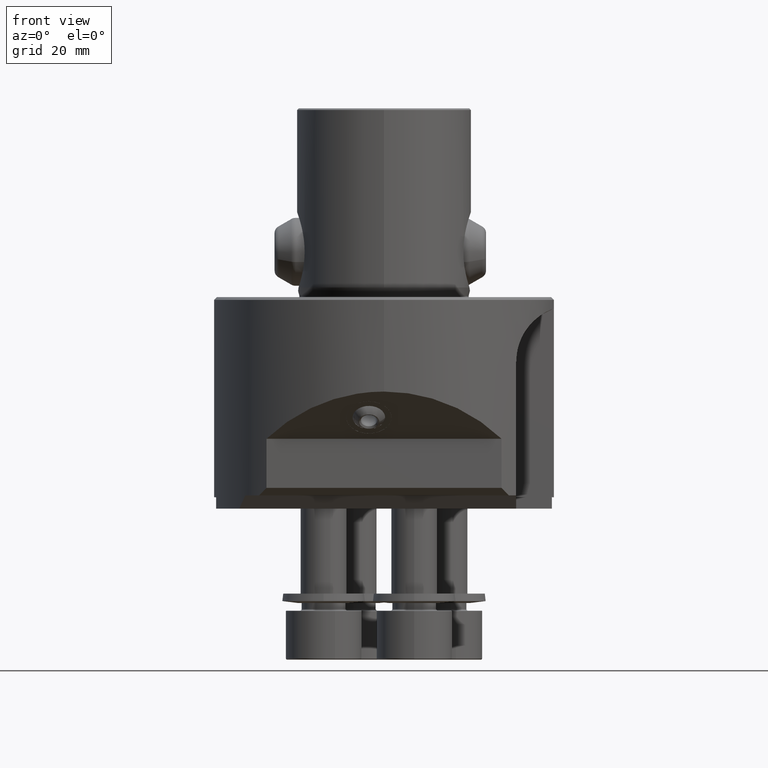
[diagram: clean part render]
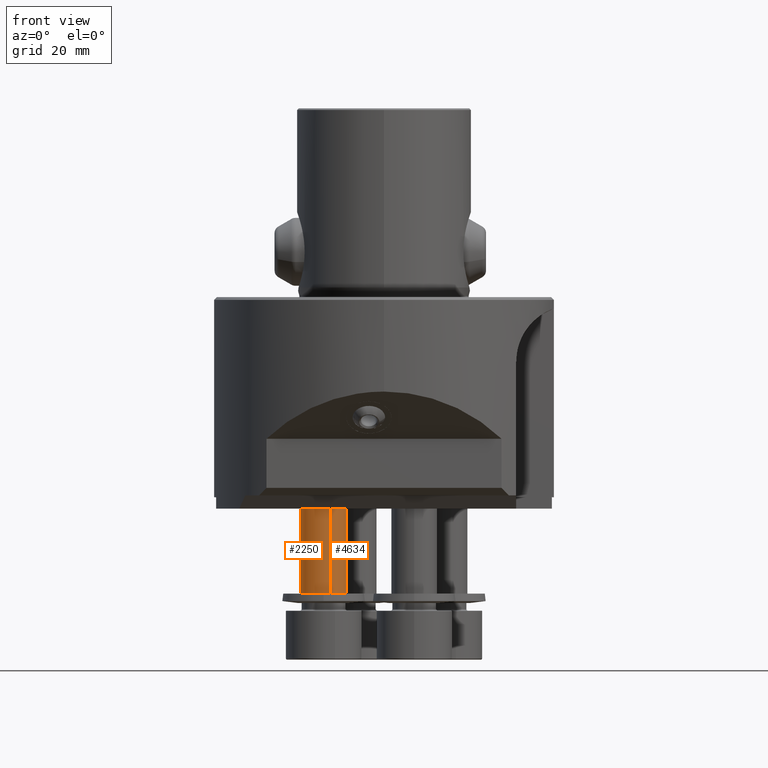
[diagram: same view with one multi-face feature highlighted, each face labeled with its STEP entity id]
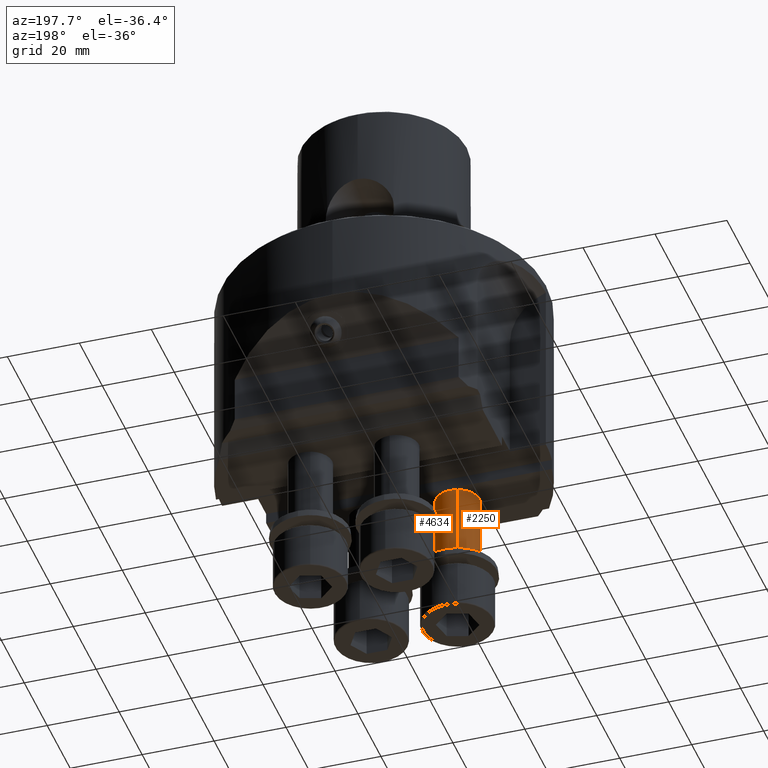
[diagram: same view with one multi-face feature highlighted, each face labeled with its STEP entity id]
A machine part, front view. The highlighted faces form ONE feature: a constant-radius fillet chain: 2 tangent blend faces with common blend radius 6.075 mm. The faces share edges in the B-rep.
A second angle (auxiliary view) of the same feature is appended — it is thin or edge-on in the first view.
Their STEP definitions:
[1] entity #4634 (Cylinder):
#2238=EDGE_CURVE('NONE',#4838,#3750,#6344,.T.);
#2286=VERTEX_POINT('NONE',#6396);
#2556=EDGE_CURVE('NONE',#5836,#4838,#6700,.T.);
#3750=VERTEX_POINT('NONE',#8047);
#4634=ADVANCED_FACE('NONE',(#9048),#9049,.T.);
#4838=VERTEX_POINT('NONE',#9280);
#5340=EDGE_CURVE('NONE',#3750,#2286,#9839,.T.);
#5474=EDGE_CURVE('NONE',#5836,#2286,#9993,.T.);
#5836=VERTEX_POINT('NONE',#10397);
#6344=LINE('',#11039,#11040);
#6396=CARTESIAN_POINT('',(-17.8342657959462,-8.20853265658691,-80.9));
#6700=CIRCLE('',#11525,6.075);
#8047=CARTESIAN_POINT('',(-14.1657342040536,-19.7914673434133,-80.9));
#9048=FACE_OUTER_BOUND('',#15001,.T.);
#9049=CYLINDRICAL_SURFACE('',#15002,6.075);
#9280=CARTESIAN_POINT('',(-14.1657342040536,-19.7914673434133,-55.1));
#9839=CIRCLE('',#16393,6.075);
#9993=LINE('',#16690,#16691);
#10397=CARTESIAN_POINT('',(-17.8342657959462,-8.20853265658691,-55.1));
#11039=CARTESIAN_POINT('',(-14.1657342040536,-19.7914673434133,-88.5539891070486));
#11040=VECTOR('',#17942,1000.0);
#11525=AXIS2_PLACEMENT_3D('',#18364,#18365,#18366);
#15001=EDGE_LOOP('',(#21422,#21423,#21424,#21425));
#15002=AXIS2_PLACEMENT_3D('',#21426,#21427,#21428);
#16393=AXIS2_PLACEMENT_3D('',#22345,#22346,#22347);
#16690=CARTESIAN_POINT('',(-17.8342657959462,-8.20853265658691,-88.5539891070486));
#16691=VECTOR('',#22557,1000.0);
#17942=DIRECTION('',(0.0,0.0,-1.0));
#18364=CARTESIAN_POINT('',(-15.9999999999999,-14.0000000000001,-55.1));
#18365=DIRECTION('',(0.0,0.0,-1.0));
#18366=DIRECTION('',(0.301936756534368,-0.95332795776349,0.0));
#21422=ORIENTED_EDGE('',*,*,#5474,.F.);
#21423=ORIENTED_EDGE('',*,*,#2556,.T.);
#21424=ORIENTED_EDGE('',*,*,#2238,.T.);
#21425=ORIENTED_EDGE('',*,*,#5340,.T.);
#21426=CARTESIAN_POINT('',(-15.9999999999999,-14.0000000000001,-88.5539891070486));
#21427=DIRECTION('',(-0.0,-0.0,-1.0));
#21428=DIRECTION('',(0.301936756534368,-0.95332795776349,-0.0));
#22345=CARTESIAN_POINT('',(-15.9999999999999,-14.0000000000001,-80.9));
#22346=DIRECTION('',(0.0,0.0,1.0));
#22347=DIRECTION('',(-0.301936756534368,0.95332795776349,0.0));
#22557=DIRECTION('',(0.0,0.0,-1.0));
[2] entity #2250 (Cylinder):
#2238=EDGE_CURVE('NONE',#4838,#3750,#6344,.T.);
#2250=ADVANCED_FACE('NONE',(#6356),#6357,.T.);
#2286=VERTEX_POINT('NONE',#6396);
#3750=VERTEX_POINT('NONE',#8047);
#4424=EDGE_CURVE('NONE',#2286,#3750,#8813,.T.);
#4838=VERTEX_POINT('NONE',#9280);
#4892=EDGE_CURVE('NONE',#4838,#5836,#9341,.T.);
#5474=EDGE_CURVE('NONE',#5836,#2286,#9993,.T.);
#5836=VERTEX_POINT('NONE',#10397);
#6344=LINE('',#11039,#11040);
#6356=FACE_OUTER_BOUND('',#11056,.T.);
#6357=CYLINDRICAL_SURFACE('',#11057,6.075);
#6396=CARTESIAN_POINT('',(-17.8342657959462,-8.20853265658691,-80.9));
#8047=CARTESIAN_POINT('',(-14.1657342040536,-19.7914673434133,-80.9));
#8813=CIRCLE('',#14629,6.075);
#9280=CARTESIAN_POINT('',(-14.1657342040536,-19.7914673434133,-55.1));
#9341=CIRCLE('',#15401,6.075);
#9993=LINE('',#16690,#16691);
#10397=CARTESIAN_POINT('',(-17.8342657959462,-8.20853265658691,-55.1));
#11039=CARTESIAN_POINT('',(-14.1657342040536,-19.7914673434133,-88.5539891070486));
#11040=VECTOR('',#17942,1000.0);
#11056=EDGE_LOOP('',(#17956,#17957,#17958,#17959));
#11057=AXIS2_PLACEMENT_3D('',#17960,#17961,#17962);
#14629=AXIS2_PLACEMENT_3D('',#21112,#21113,#21114);
#15401=AXIS2_PLACEMENT_3D('',#21781,#21782,#21783);
#16690=CARTESIAN_POINT('',(-17.8342657959462,-8.20853265658691,-88.5539891070486));
#16691=VECTOR('',#22557,1000.0);
#17942=DIRECTION('',(0.0,0.0,-1.0));
#17956=ORIENTED_EDGE('',*,*,#4892,.T.);
#17957=ORIENTED_EDGE('',*,*,#5474,.T.);
#17958=ORIENTED_EDGE('',*,*,#4424,.T.);
#17959=ORIENTED_EDGE('',*,*,#2238,.F.);
#17960=CARTESIAN_POINT('',(-15.9999999999999,-14.0000000000001,-88.5539891070486));
#17961=DIRECTION('',(-0.0,-0.0,-1.0));
#17962=DIRECTION('',(0.301936756534368,-0.95332795776349,-0.0));
#21112=CARTESIAN_POINT('',(-15.9999999999999,-14.0000000000001,-80.9));
#21113=DIRECTION('',(0.0,0.0,1.0));
#21114=DIRECTION('',(-0.301936756534368,0.95332795776349,0.0));
#21781=CARTESIAN_POINT('',(-15.9999999999999,-14.0000000000001,-55.1));
#21782=DIRECTION('',(0.0,0.0,-1.0));
#21783=DIRECTION('',(0.301936756534368,-0.95332795776349,0.0));
#22557=DIRECTION('',(0.0,0.0,-1.0));